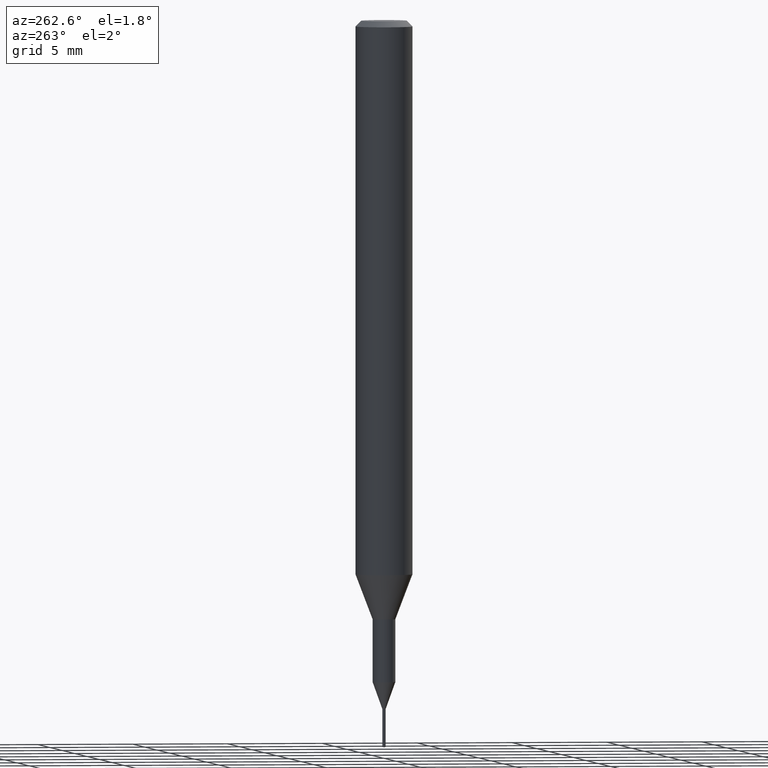
[diagram: clean part render]
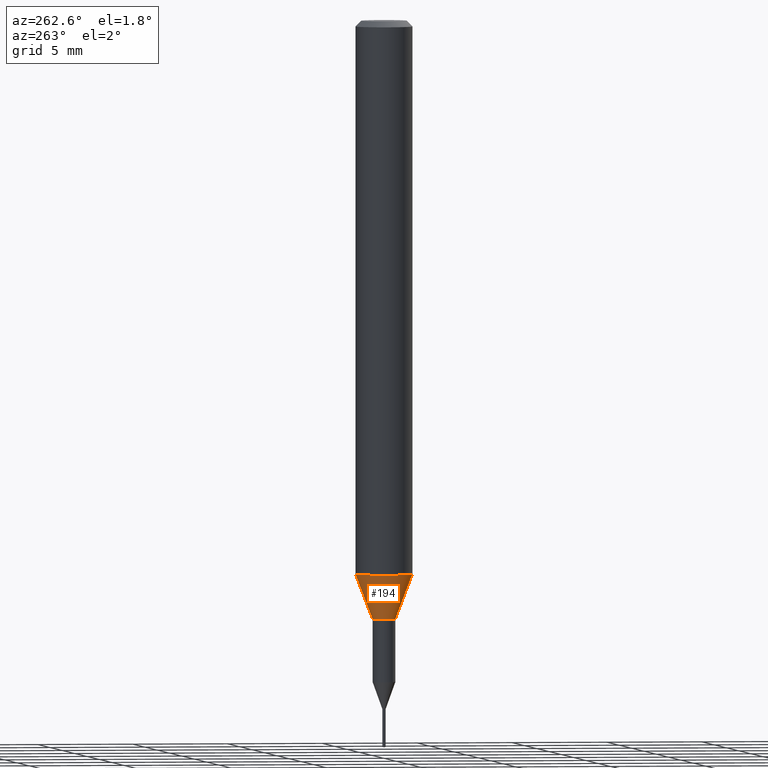
[diagram: same view with one face highlighted and labeled with its STEP entity id]
A machine part, auxiliary view. The second image highlights one B-rep face of the part: STEP entity #194.
In plain terms, the highlighted conical surface has half-angle 20.997 deg.
Its self-contained STEP definition (entity closure, byte-faithful):
#114=EDGE_CURVE('',#154,#240,#291,.T.);
#132=EDGE_CURVE('',#178,#240,#312,.T.);
#154=VERTEX_POINT('',#336);
#178=VERTEX_POINT('',#362);
#188=EDGE_CURVE('',#238,#178,#372,.T.);
#194=ADVANCED_FACE('',(#378),#379,.T.);
#198=EDGE_CURVE('',#154,#238,#384,.T.);
#238=VERTEX_POINT('',#429);
#240=VERTEX_POINT('',#431);
#291=CIRCLE('',#483,0.6);
#312=LINE('',#511,#512);
#336=CARTESIAN_POINT('',(7.34763812293426E-017,-0.6,-31.3));
#362=CARTESIAN_POINT('',(0.0,1.5,-28.955));
#372=CIRCLE('',#595,1.5);
#378=FACE_OUTER_BOUND('',#602,.T.);
#379=CONICAL_SURFACE('',#603,1.05,0.366459241971866);
#384=LINE('',#609,#610);
#429=CARTESIAN_POINT('',(1.83690953073357E-016,-1.5,-28.955));
#431=CARTESIAN_POINT('',(0.0,0.6,-31.3));
#483=AXIS2_PLACEMENT_3D('',#711,#712,#713);
#511=CARTESIAN_POINT('',(-1.2858366715135E-016,1.05,-30.1275));
#512=VECTOR('',#743,1.0);
#595=AXIS2_PLACEMENT_3D('',#804,#805,#806);
#602=EDGE_LOOP('',(#811,#812,#813,#814));
#603=AXIS2_PLACEMENT_3D('',#815,#816,#817);
#609=CARTESIAN_POINT('',(1.2858366715135E-016,-1.05,-30.1275));
#610=VECTOR('',#824,1.0);
#711=CARTESIAN_POINT('',(0.0,0.0,-31.3));
#712=DIRECTION('',(0.0,0.0,-1.0));
#713=DIRECTION('',(0.0,1.0,0.0));
#743=DIRECTION('',(4.38791184365088E-017,-0.358312026550805,-0.93360189140182));
#804=CARTESIAN_POINT('',(0.0,0.0,-28.955));
#805=DIRECTION('',(0.0,0.0,-1.0));
#806=DIRECTION('',(0.0,1.0,0.0));
#811=ORIENTED_EDGE('',*,*,#132,.T.);
#812=ORIENTED_EDGE('',*,*,#114,.F.);
#813=ORIENTED_EDGE('',*,*,#198,.T.);
#814=ORIENTED_EDGE('',*,*,#188,.T.);
#815=CARTESIAN_POINT('',(0.0,0.0,-30.1275));
#816=DIRECTION('',(-0.0,-0.0,1.0));
#817=DIRECTION('',(0.0,1.0,0.0));
#824=DIRECTION('',(4.38791184365088E-017,-0.358312026550805,0.93360189140182));